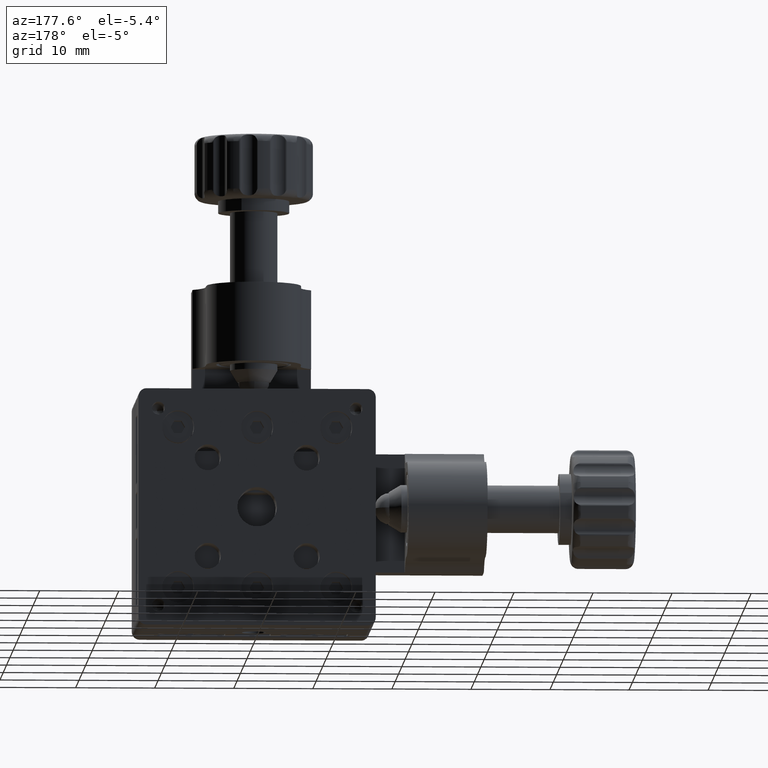
[diagram: clean part render]
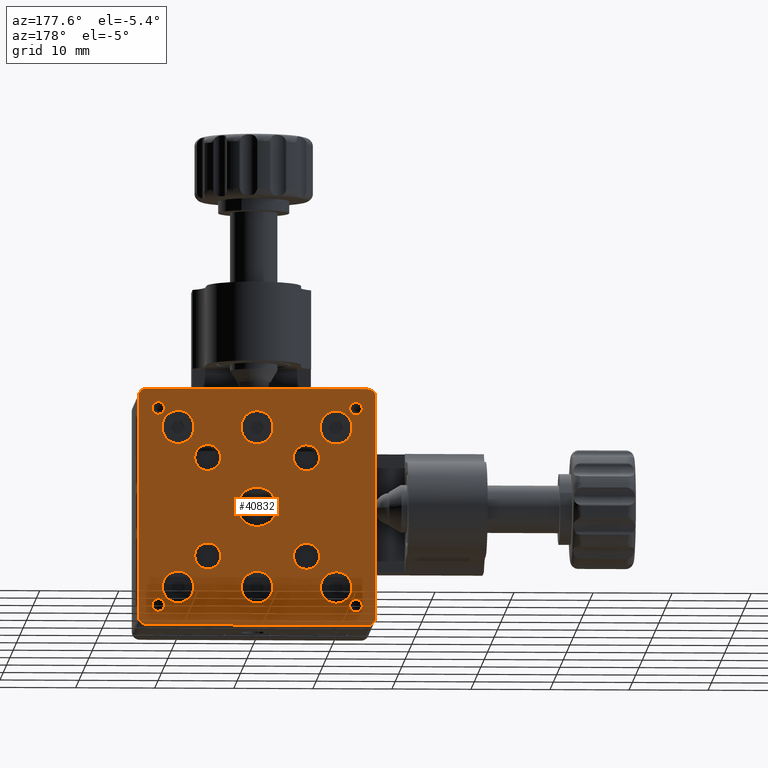
[diagram: same view with one face highlighted and labeled with its STEP entity id]
A machine part, auxiliary view. The second image highlights one B-rep face of the part: STEP entity #40832.
In plain terms, the highlighted planar face has unit normal (0, -1, 0).
Its self-contained STEP definition (entity closure, byte-faithful):
#114 = ORIENTED_EDGE ( 'NONE', *, *, #8071, .F. ) ;
#192 = DIRECTION ( 'NONE',  ( -2.997602166487921900E-015, 1.000000000000000000, -1.224606353822379200E-016 ) ) ;
#313 = ORIENTED_EDGE ( 'NONE', *, *, #47491, .F. ) ;
#328 = FACE_BOUND ( 'NONE', #18377, .T. ) ;
#331 = CARTESIAN_POINT ( 'NONE',  ( 14.00000000000000000, 20.50000000000004300, -14.00000000000000400 ) ) ;
#492 = DIRECTION ( 'NONE',  ( -2.997602166487921900E-015, 1.000000000000000000, -1.224606353822379200E-016 ) ) ;
#558 = CIRCLE ( 'NONE', #43018, 2.000000000000000000 ) ;
#562 = EDGE_CURVE ( 'NONE', #3336, #20582, #16929, .T. ) ;
#799 = CIRCLE ( 'NONE', #32449, 1.649999999999987500 ) ;
#1013 = EDGE_CURVE ( 'NONE', #4584, #19247, #11845, .T. ) ;
#1039 = CARTESIAN_POINT ( 'NONE',  ( 7.899999999999979900, 20.50000000000002500, 6.250000000000006200 ) ) ;
#1166 = DIRECTION ( 'NONE',  ( -2.997602166487921900E-015, 1.000000000000000000, -2.386109350007397900E-031 ) ) ;
#1644 = DIRECTION ( 'NONE',  ( 1.224606353822366900E-016, 0.0000000000000000000, -1.000000000000000000 ) ) ;
#1684 = DIRECTION ( 'NONE',  ( 0.0000000000000000000, 0.0000000000000000000, -1.000000000000000000 ) ) ;
#1900 = EDGE_CURVE ( 'NONE', #30932, #22012, #29693, .T. ) ;
#1932 = CARTESIAN_POINT ( 'NONE',  ( 14.99999999999999800, 20.50000000000005700, 15.00000000000001100 ) ) ;
#1982 = EDGE_CURVE ( 'NONE', #20019, #39586, #4286, .T. ) ;
#2001 = VERTEX_POINT ( 'NONE', #39128 ) ;
#2007 = VERTEX_POINT ( 'NONE', #11277 ) ;
#2032 = VERTEX_POINT ( 'NONE', #18935 ) ;
#2434 = CARTESIAN_POINT ( 'NONE',  ( -10.00000000000000200, 20.50000000000003200, 7.999999999999967100 ) ) ;
#2597 = CIRCLE ( 'NONE', #4235, 0.9999999999999991100 ) ;
#2702 = CARTESIAN_POINT ( 'NONE',  ( 13.99999999999999600, 20.50000000000005700, 14.00000000000001100 ) ) ;
#2743 = VERTEX_POINT ( 'NONE', #16041 ) ;
#2924 = VECTOR ( 'NONE', #32388, 1000.000000000000000 ) ;
#2951 = VERTEX_POINT ( 'NONE', #21485 ) ;
#3113 = DIRECTION ( 'NONE',  ( -2.997602166487921900E-015, 1.000000000000000000, -2.386109350007397900E-031 ) ) ;
#3182 = EDGE_LOOP ( 'NONE', ( #39464, #37356 ) ) ;
#3336 = VERTEX_POINT ( 'NONE', #12397 ) ;
#3345 = ORIENTED_EDGE ( 'NONE', *, *, #41640, .F. ) ;
#3468 = EDGE_LOOP ( 'NONE', ( #14972, #48994 ) ) ;
#3511 = DIRECTION ( 'NONE',  ( -2.997602166487921900E-015, 1.000000000000000000, -2.386109350007397900E-031 ) ) ;
#3728 = EDGE_LOOP ( 'NONE', ( #21303, #21374 ) ) ;
#4057 = DIRECTION ( 'NONE',  ( -1.224606353822366900E-016, 1.224606353822378200E-016, 1.000000000000000000 ) ) ;
#4101 = VERTEX_POINT ( 'NONE', #43845 ) ;
#4144 = CARTESIAN_POINT ( 'NONE',  ( 14.00000000000000000, 20.50000000000004300, -15.00000000000000400 ) ) ;
#4152 = AXIS2_PLACEMENT_3D ( 'NONE', #24954, #1166, #37701 ) ;
#4182 = DIRECTION ( 'NONE',  ( 1.224606353822366900E-016, 0.0000000000000000000, -1.000000000000000000 ) ) ;
#4235 = AXIS2_PLACEMENT_3D ( 'NONE', #2702, #30755, #50401 ) ;
#4286 = CIRCLE ( 'NONE', #19541, 1.649999999999988400 ) ;
#4340 = DIRECTION ( 'NONE',  ( -2.997602166487921900E-015, 1.000000000000000000, -1.224606353822379200E-016 ) ) ;
#4344 = DIRECTION ( 'NONE',  ( -2.997602166487921900E-015, 1.000000000000000000, -1.224606353822379200E-016 ) ) ;
#4394 = VECTOR ( 'NONE', #16592, 1000.000000000000000 ) ;
#4458 = VERTEX_POINT ( 'NONE', #26147 ) ;
#4563 = VERTEX_POINT ( 'NONE', #19581 ) ;
#4584 = VERTEX_POINT ( 'NONE', #35446 ) ;
#4667 = ORIENTED_EDGE ( 'NONE', *, *, #9670, .F. ) ;
#4671 = EDGE_LOOP ( 'NONE', ( #42762, #48431 ) ) ;
#4969 = CIRCLE ( 'NONE', #36708, 2.000000000000000000 ) ;
#5340 = FACE_BOUND ( 'NONE', #45796, .T. ) ;
#5416 = CARTESIAN_POINT ( 'NONE',  ( -12.00000000000000700, 20.50000000000005000, 9.999999999999913000 ) ) ;
#5554 = EDGE_CURVE ( 'NONE', #48292, #13274, #17712, .T. ) ;
#6122 = EDGE_CURVE ( 'NONE', #7581, #45290, #22583, .T. ) ;
#6163 = AXIS2_PLACEMENT_3D ( 'NONE', #29669, #49320, #33832 ) ;
#6476 = EDGE_LOOP ( 'NONE', ( #41348, #4667 ) ) ;
#6697 = CARTESIAN_POINT ( 'NONE',  ( -10.00000000000000500, 20.50000000000003200, -12.19999999999998900 ) ) ;
#6896 = ORIENTED_EDGE ( 'NONE', *, *, #18108, .F. ) ;
#6932 = AXIS2_PLACEMENT_3D ( 'NONE', #33303, #33954, #45945 ) ;
#7581 = VERTEX_POINT ( 'NONE', #12919 ) ;
#7743 = DIRECTION ( 'NONE',  ( -2.997602166487921900E-015, 1.000000000000000000, -1.224606353822379200E-016 ) ) ;
#7760 = EDGE_CURVE ( 'NONE', #33993, #44903, #39705, .T. ) ;
#7901 = CARTESIAN_POINT ( 'NONE',  ( 13.29999999999998800, 20.49999999999998900, -12.49999999999998900 ) ) ;
#8071 = EDGE_CURVE ( 'NONE', #15922, #46579, #4969, .T. ) ;
#8383 = CIRCLE ( 'NONE', #16347, 2.499999999999974200 ) ;
#8569 = ORIENTED_EDGE ( 'NONE', *, *, #17681, .F. ) ;
#8946 = VERTEX_POINT ( 'NONE', #17439 ) ;
#9075 = CARTESIAN_POINT ( 'NONE',  ( -14.99999999999999800, 20.50000000000010700, -15.00000000000000700 ) ) ;
#9202 = CARTESIAN_POINT ( 'NONE',  ( -15.00000000000000200, 20.50000000000011700, 15.00000000000000700 ) ) ;
#9365 = EDGE_CURVE ( 'NONE', #20582, #3336, #17311, .T. ) ;
#9665 = ORIENTED_EDGE ( 'NONE', *, *, #43163, .F. ) ;
#9670 = EDGE_CURVE ( 'NONE', #39586, #20019, #41368, .T. ) ;
#9725 = DIRECTION ( 'NONE',  ( -2.997602166487921900E-015, 1.000000000000000000, -2.386109350007397900E-031 ) ) ;
#9783 = DIRECTION ( 'NONE',  ( 0.0000000000000000000, 0.0000000000000000000, 1.000000000000000000 ) ) ;
#10124 = DIRECTION ( 'NONE',  ( -2.997602166487921900E-015, 1.000000000000000000, -1.224606353822379200E-016 ) ) ;
#10265 = DIRECTION ( 'NONE',  ( -2.997602166487921900E-015, 1.000000000000000000, -2.386109350007397900E-031 ) ) ;
#10314 = DIRECTION ( 'NONE',  ( 2.290864980352958700E-015, -1.224606353822427300E-016, -1.000000000000000000 ) ) ;
#10869 = CARTESIAN_POINT ( 'NONE',  ( -4.600000000000015600, 20.50000000000001800, -6.249999999999992900 ) ) ;
#11103 = DIRECTION ( 'NONE',  ( -1.000000000000000000, 2.102695122396144600E-015, 0.0000000000000000000 ) ) ;
#11277 = CARTESIAN_POINT ( 'NONE',  ( 2.000000000000000000, 20.50000000000008900, 10.19999999999999400 ) ) ;
#11317 = ORIENTED_EDGE ( 'NONE', *, *, #13414, .F. ) ;
#11479 = VERTEX_POINT ( 'NONE', #41059 ) ;
#11487 = DIRECTION ( 'NONE',  ( -1.000000000000000000, 2.102695122396145800E-015, 0.0000000000000000000 ) ) ;
#11569 = CARTESIAN_POINT ( 'NONE',  ( 10.00000000000000700, 20.50000000000000400, 10.20000000000000300 ) ) ;
#11786 = CARTESIAN_POINT ( 'NONE',  ( 1.999999999999998200, 20.50000000000001800, 9.999999999999968000 ) ) ;
#11796 = ORIENTED_EDGE ( 'NONE', *, *, #49135, .F. ) ;
#11845 = LINE ( 'NONE', #46229, #37864 ) ;
#11847 = CIRCLE ( 'NONE', #28515, 0.7999999999999899400 ) ;
#11917 = VECTOR ( 'NONE', #10314, 1000.000000000000000 ) ;
#11983 = AXIS2_PLACEMENT_3D ( 'NONE', #18299, #26394, #22774 ) ;
#12089 = DIRECTION ( 'NONE',  ( 0.0000000000000000000, 0.0000000000000000000, -1.000000000000000000 ) ) ;
#12110 = FACE_BOUND ( 'NONE', #47337, .T. ) ;
#12397 = CARTESIAN_POINT ( 'NONE',  ( 1.191483977452903700E-015, 20.50000000000001800, -12.19999999999998700 ) ) ;
#12504 = CARTESIAN_POINT ( 'NONE',  ( -12.50000000000000900, 20.50000000000005000, -12.49999999999999300 ) ) ;
#12512 = CIRCLE ( 'NONE', #43719, 2.000000000000000000 ) ;
#12609 = DIRECTION ( 'NONE',  ( 1.224606353822366900E-016, -1.224606353822378200E-016, -1.000000000000000000 ) ) ;
#12700 = CARTESIAN_POINT ( 'NONE',  ( -12.50000000000000500, 20.50000000000005000, 12.50000000000000900 ) ) ;
#12829 = CARTESIAN_POINT ( 'NONE',  ( 10.00000000000000700, 20.50000000000000400, 9.999999999999969800 ) ) ;
#12897 = AXIS2_PLACEMENT_3D ( 'NONE', #21736, #49467, #25710 ) ;
#12919 = CARTESIAN_POINT ( 'NONE',  ( 10.00000000000000900, 20.50000000000000400, -8.199999999999985100 ) ) ;
#12987 = ORIENTED_EDGE ( 'NONE', *, *, #6122, .F. ) ;
#13210 = CARTESIAN_POINT ( 'NONE',  ( -10.00000000000000900, 20.50000000000003200, -8.199999999999988600 ) ) ;
#13274 = VERTEX_POINT ( 'NONE', #15475 ) ;
#13280 = VERTEX_POINT ( 'NONE', #11786 ) ;
#13414 = EDGE_CURVE ( 'NONE', #26894, #15922, #16519, .T. ) ;
#13448 = DIRECTION ( 'NONE',  ( -2.997602166487921900E-015, 1.000000000000000000, -2.386109350007397900E-031 ) ) ;
#13652 = VECTOR ( 'NONE', #46802, 1000.000000000000000 ) ;
#13899 = DIRECTION ( 'NONE',  ( -2.997602166487921900E-015, 1.000000000000000000, -1.224606353822379200E-016 ) ) ;
#14062 = DIRECTION ( 'NONE',  ( -1.000000000000000000, 1.387778780781460100E-015, -1.224606353822385600E-016 ) ) ;
#14066 = EDGE_LOOP ( 'NONE', ( #3345, #22474 ) ) ;
#14140 = CARTESIAN_POINT ( 'NONE',  ( -11.70000000000001900, 20.50000000000005300, -12.49999999999999300 ) ) ;
#14156 = DIRECTION ( 'NONE',  ( -2.997602166487921900E-015, 1.000000000000000000, -1.224606353822379200E-016 ) ) ;
#14315 = AXIS2_PLACEMENT_3D ( 'NONE', #24259, #24927, #47973 ) ;
#14537 = CIRCLE ( 'NONE', #21846, 0.7999999999999899400 ) ;
#14596 = FACE_BOUND ( 'NONE', #14066, .T. ) ;
#14963 = ORIENTED_EDGE ( 'NONE', *, *, #46860, .T. ) ;
#14972 = ORIENTED_EDGE ( 'NONE', *, *, #29740, .F. ) ;
#15022 = EDGE_CURVE ( 'NONE', #2001, #4101, #42889, .T. ) ;
#15179 = CARTESIAN_POINT ( 'NONE',  ( -3.025357742103774500E-016, 20.50000000000001800, 1.408227788973710700E-014 ) ) ;
#15182 = DIRECTION ( 'NONE',  ( -2.997602166487921900E-015, 1.000000000000000000, -2.386109350007397900E-031 ) ) ;
#15278 = DIRECTION ( 'NONE',  ( -2.997602166487921900E-015, 1.000000000000000000, -2.386109350007397900E-031 ) ) ;
#15391 = AXIS2_PLACEMENT_3D ( 'NONE', #12829, #44174, #24456 ) ;
#15475 = CARTESIAN_POINT ( 'NONE',  ( -12.00000000000001200, 20.50000000000005000, 10.19999999999995300 ) ) ;
#15485 = CARTESIAN_POINT ( 'NONE',  ( 8.000000000000007100, 20.50000000000000400, 9.999999999999969800 ) ) ;
#15606 = ORIENTED_EDGE ( 'NONE', *, *, #23817, .T. ) ;
#15662 = CARTESIAN_POINT ( 'NONE',  ( -6.250000000000003600, 20.50000000000001400, -6.249999999999992900 ) ) ;
#15714 = DIRECTION ( 'NONE',  ( -1.000000000000000000, 2.102695122396144600E-015, 0.0000000000000000000 ) ) ;
#15922 = VERTEX_POINT ( 'NONE', #27475 ) ;
#15999 = CIRCLE ( 'NONE', #29210, 1.649999999999988400 ) ;
#16041 = CARTESIAN_POINT ( 'NONE',  ( 11.70000000000000600, 20.49999999999998600, 12.50000000000001200 ) ) ;
#16347 = AXIS2_PLACEMENT_3D ( 'NONE', #15179, #46152, #22442 ) ;
#16519 = CIRCLE ( 'NONE', #15391, 2.000000000000000000 ) ;
#16592 = DIRECTION ( 'NONE',  ( 1.000000000000000000, -1.887379141862765300E-015, 1.224606353822385100E-016 ) ) ;
#16691 = EDGE_CURVE ( 'NONE', #32008, #23409, #21177, .T. ) ;
#16713 = DIRECTION ( 'NONE',  ( 1.224606353822366900E-016, 0.0000000000000000000, -1.000000000000000000 ) ) ;
#16838 = DIRECTION ( 'NONE',  ( 0.0000000000000000000, 0.0000000000000000000, 1.000000000000000000 ) ) ;
#16929 = CIRCLE ( 'NONE', #39360, 2.000000000000000000 ) ;
#16938 = AXIS2_PLACEMENT_3D ( 'NONE', #42841, #15182, #15714 ) ;
#16970 = AXIS2_PLACEMENT_3D ( 'NONE', #23113, #43000, #47534 ) ;
#17004 = ORIENTED_EDGE ( 'NONE', *, *, #30564, .F. ) ;
#17077 = CIRCLE ( 'NONE', #40399, 0.7999999999999899400 ) ;
#17311 = CIRCLE ( 'NONE', #18265, 2.000000000000000000 ) ;
#17373 = CIRCLE ( 'NONE', #4152, 0.7999999999999899400 ) ;
#17439 = CARTESIAN_POINT ( 'NONE',  ( 3.214182392463624500E-015, 20.50000000000001800, 7.999999999999967100 ) ) ;
#17677 = AXIS2_PLACEMENT_3D ( 'NONE', #40988, #49005, #1684 ) ;
#17681 = EDGE_CURVE ( 'NONE', #13280, #8946, #558, .T. ) ;
#17712 = LINE ( 'NONE', #5416, #44306 ) ;
#17850 = ORIENTED_EDGE ( 'NONE', *, *, #44859, .F. ) ;
#17949 = CARTESIAN_POINT ( 'NONE',  ( 6.249999999999993800, 20.50000000000002100, -6.249999999999991100 ) ) ;
#18108 = EDGE_CURVE ( 'NONE', #35152, #27611, #42097, .T. ) ;
#18265 = AXIS2_PLACEMENT_3D ( 'NONE', #41301, #10124, #1644 ) ;
#18299 = CARTESIAN_POINT ( 'NONE',  ( 6.249999999999993800, 20.50000000000002100, -6.249999999999991100 ) ) ;
#18377 = EDGE_LOOP ( 'NONE', ( #50429, #30092 ) ) ;
#18445 = VECTOR ( 'NONE', #40719, 1000.000000000000000 ) ;
#18743 = CARTESIAN_POINT ( 'NONE',  ( 10.00000000000001200, 20.50000000000000400, -12.19999999999998500 ) ) ;
#18924 = VERTEX_POINT ( 'NONE', #46215 ) ;
#18935 = CARTESIAN_POINT ( 'NONE',  ( 14.99999999999999800, 20.50000000000005700, 14.00000000000001100 ) ) ;
#19161 = VERTEX_POINT ( 'NONE', #37341 ) ;
#19247 = VERTEX_POINT ( 'NONE', #50193 ) ;
#19541 = AXIS2_PLACEMENT_3D ( 'NONE', #15662, #3113, #11103 ) ;
#19581 = CARTESIAN_POINT ( 'NONE',  ( 15.00000000000000200, 20.50000000000004300, -14.00000000000000200 ) ) ;
#19631 = ORIENTED_EDGE ( 'NONE', *, *, #33173, .T. ) ;
#19929 = EDGE_CURVE ( 'NONE', #35015, #48684, #46306, .T. ) ;
#20019 = VERTEX_POINT ( 'NONE', #44730 ) ;
#20138 = CARTESIAN_POINT ( 'NONE',  ( 8.000000000000005300, 20.50000000000007500, 9.999999999999969800 ) ) ;
#20197 = FACE_BOUND ( 'NONE', #3728, .T. ) ;
#20290 = DIRECTION ( 'NONE',  ( -2.997602166487921900E-015, 1.000000000000000000, -2.386109350007397900E-031 ) ) ;
#20310 = CIRCLE ( 'NONE', #11983, 1.649999999999988400 ) ;
#20365 = CARTESIAN_POINT ( 'NONE',  ( -15.00000000000000200, 20.50000000000011700, 15.00000000000000700 ) ) ;
#20560 = ORIENTED_EDGE ( 'NONE', *, *, #37201, .F. ) ;
#20582 = VERTEX_POINT ( 'NONE', #45024 ) ;
#20817 = EDGE_LOOP ( 'NONE', ( #40929, #114, #11317, #36789, #6896 ) ) ;
#21031 = CARTESIAN_POINT ( 'NONE',  ( 11.70000000000000800, 20.49999999999998600, -12.49999999999998900 ) ) ;
#21163 = CARTESIAN_POINT ( 'NONE',  ( 4.600000000000002300, 20.50000000000002500, 6.250000000000006200 ) ) ;
#21177 = CIRCLE ( 'NONE', #45985, 2.000000000000000000 ) ;
#21303 = ORIENTED_EDGE ( 'NONE', *, *, #34258, .F. ) ;
#21374 = ORIENTED_EDGE ( 'NONE', *, *, #48984, .F. ) ;
#21485 = CARTESIAN_POINT ( 'NONE',  ( -8.000000000000010700, 20.50000000000003200, 10.20000000000000600 ) ) ;
#21607 = DIRECTION ( 'NONE',  ( 0.0000000000000000000, 0.0000000000000000000, -1.000000000000000000 ) ) ;
#21736 = CARTESIAN_POINT ( 'NONE',  ( -6.249999999999999100, 20.50000000000001400, 6.250000000000004400 ) ) ;
#21846 = AXIS2_PLACEMENT_3D ( 'NONE', #41849, #13448, #25732 ) ;
#22012 = VERTEX_POINT ( 'NONE', #7901 ) ;
#22392 = DIRECTION ( 'NONE',  ( -2.997602166487921900E-015, 1.000000000000000000, -2.386109350007397900E-031 ) ) ;
#22442 = DIRECTION ( 'NONE',  ( -1.000000000000000000, 1.387778780781460100E-015, -1.224606353822385600E-016 ) ) ;
#22450 = CIRCLE ( 'NONE', #6932, 0.7999999999999899400 ) ;
#22474 = ORIENTED_EDGE ( 'NONE', *, *, #15022, .F. ) ;
#22583 = CIRCLE ( 'NONE', #46289, 2.000000000000000000 ) ;
#22774 = DIRECTION ( 'NONE',  ( -1.000000000000000000, 2.102695122396144600E-015, 0.0000000000000000000 ) ) ;
#23113 = CARTESIAN_POINT ( 'NONE',  ( -10.00000000000001100, 20.50000000000003200, 10.20000000000000600 ) ) ;
#23409 = VERTEX_POINT ( 'NONE', #6697 ) ;
#23794 = CARTESIAN_POINT ( 'NONE',  ( -15.00000000000000200, 20.50000000000011700, 14.00000000000000400 ) ) ;
#23817 = EDGE_CURVE ( 'NONE', #44954, #35015, #36583, .T. ) ;
#23990 = FACE_BOUND ( 'NONE', #35717, .T. ) ;
#24063 = ORIENTED_EDGE ( 'NONE', *, *, #30042, .F. ) ;
#24086 = AXIS2_PLACEMENT_3D ( 'NONE', #30901, #26434, #38879 ) ;
#24259 = CARTESIAN_POINT ( 'NONE',  ( -13.99999999999999600, 20.50000000000010700, -14.00000000000000900 ) ) ;
#24383 = CIRCLE ( 'NONE', #14315, 1.000000000000000900 ) ;
#24386 = AXIS2_PLACEMENT_3D ( 'NONE', #45342, #48993, #37017 ) ;
#24395 = CARTESIAN_POINT ( 'NONE',  ( 12.00000000000000700, 20.49999999999998600, 9.999999999999969800 ) ) ;
#24456 = DIRECTION ( 'NONE',  ( 0.0000000000000000000, 0.0000000000000000000, -1.000000000000000000 ) ) ;
#24499 = ORIENTED_EDGE ( 'NONE', *, *, #37885, .F. ) ;
#24927 = DIRECTION ( 'NONE',  ( -2.997602166487921900E-015, 1.000000000000000000, -1.224606353822379200E-016 ) ) ;
#24954 = CARTESIAN_POINT ( 'NONE',  ( 12.49999999999999500, 20.49999999999998600, 12.50000000000001200 ) ) ;
#25195 = VERTEX_POINT ( 'NONE', #1039 ) ;
#25710 = DIRECTION ( 'NONE',  ( -1.000000000000000000, 2.102695122396145800E-015, 0.0000000000000000000 ) ) ;
#25732 = DIRECTION ( 'NONE',  ( -1.000000000000000000, 0.0000000000000000000, 0.0000000000000000000 ) ) ;
#25786 = ORIENTED_EDGE ( 'NONE', *, *, #43339, .F. ) ;
#26057 = DIRECTION ( 'NONE',  ( -1.000000000000000000, 0.0000000000000000000, 0.0000000000000000000 ) ) ;
#26080 = VERTEX_POINT ( 'NONE', #30894 ) ;
#26144 = DIRECTION ( 'NONE',  ( -2.290864980352958700E-015, 1.224606353822427300E-016, 1.000000000000000000 ) ) ;
#26147 = CARTESIAN_POINT ( 'NONE',  ( -11.70000000000001500, 20.50000000000005300, 12.50000000000000900 ) ) ;
#26394 = DIRECTION ( 'NONE',  ( -2.997602166487921900E-015, 1.000000000000000000, -2.386109350007397900E-031 ) ) ;
#26434 = DIRECTION ( 'NONE',  ( -2.997602166487921900E-015, 1.000000000000000000, -1.224606353822379200E-016 ) ) ;
#26671 = ORIENTED_EDGE ( 'NONE', *, *, #9365, .F. ) ;
#26790 = EDGE_CURVE ( 'NONE', #18924, #43826, #34179, .T. ) ;
#26894 = VERTEX_POINT ( 'NONE', #44485 ) ;
#26910 = ORIENTED_EDGE ( 'NONE', *, *, #39217, .F. ) ;
#26930 = ORIENTED_EDGE ( 'NONE', *, *, #1013, .F. ) ;
#27060 = AXIS2_PLACEMENT_3D ( 'NONE', #33446, #22392, #45433 ) ;
#27111 = EDGE_CURVE ( 'NONE', #19247, #2007, #12512, .T. ) ;
#27297 = AXIS2_PLACEMENT_3D ( 'NONE', #331, #492, #16838 ) ;
#27321 = ORIENTED_EDGE ( 'NONE', *, *, #19929, .T. ) ;
#27408 = EDGE_CURVE ( 'NONE', #31238, #49719, #42805, .T. ) ;
#27475 = CARTESIAN_POINT ( 'NONE',  ( 10.00000000000001600, 20.50000000000000400, 7.999999999999968900 ) ) ;
#27611 = VERTEX_POINT ( 'NONE', #45439 ) ;
#27646 = CARTESIAN_POINT ( 'NONE',  ( -13.29999999999999500, 20.50000000000005000, 12.50000000000000900 ) ) ;
#27825 = EDGE_CURVE ( 'NONE', #46579, #35152, #46496, .T. ) ;
#27911 = DIRECTION ( 'NONE',  ( 0.0000000000000000000, 0.0000000000000000000, -1.000000000000000000 ) ) ;
#28093 = CARTESIAN_POINT ( 'NONE',  ( 9.465627066884302000E-016, 20.50000000000001800, -10.19999999999998700 ) ) ;
#28120 = DIRECTION ( 'NONE',  ( -1.000000000000000000, 0.0000000000000000000, 0.0000000000000000000 ) ) ;
#28231 = EDGE_LOOP ( 'NONE', ( #42480, #24063, #46916, #26910, #11796 ) ) ;
#28515 = AXIS2_PLACEMENT_3D ( 'NONE', #37806, #37648, #26057 ) ;
#28869 = EDGE_CURVE ( 'NONE', #40693, #19161, #39571, .T. ) ;
#29184 = CARTESIAN_POINT ( 'NONE',  ( -14.00000000000000000, 20.50000000000011700, 14.00000000000000400 ) ) ;
#29210 = AXIS2_PLACEMENT_3D ( 'NONE', #35648, #20290, #43629 ) ;
#29669 = CARTESIAN_POINT ( 'NONE',  ( -1.527142128032736700E-015, 20.50000000000001800, 9.999999999999968000 ) ) ;
#29693 = CIRCLE ( 'NONE', #48059, 0.7999999999999899400 ) ;
#29740 = EDGE_CURVE ( 'NONE', #39270, #25195, #15999, .T. ) ;
#30042 = EDGE_CURVE ( 'NONE', #43826, #48292, #33269, .T. ) ;
#30092 = ORIENTED_EDGE ( 'NONE', *, *, #16691, .F. ) ;
#30210 = CARTESIAN_POINT ( 'NONE',  ( 1.999999999999998200, 20.50000000000001800, 9.999999999999968000 ) ) ;
#30456 = CARTESIAN_POINT ( 'NONE',  ( 10.00000000000001200, 20.50000000000000400, -10.19999999999998500 ) ) ;
#30564 = EDGE_CURVE ( 'NONE', #44903, #33993, #20310, .T. ) ;
#30635 = AXIS2_PLACEMENT_3D ( 'NONE', #29184, #33494, #9783 ) ;
#30651 = FACE_BOUND ( 'NONE', #6476, .T. ) ;
#30755 = DIRECTION ( 'NONE',  ( -2.997602166487921900E-015, 1.000000000000000000, -1.224606353822379200E-016 ) ) ;
#30817 = AXIS2_PLACEMENT_3D ( 'NONE', #20365, #39540, #4057 ) ;
#30839 = CARTESIAN_POINT ( 'NONE',  ( -12.00000000000000700, 20.50000000000010700, 9.999999999999913000 ) ) ;
#30894 = CARTESIAN_POINT ( 'NONE',  ( -7.899999999999987000, 20.50000000000001800, 6.250000000000004400 ) ) ;
#30901 = CARTESIAN_POINT ( 'NONE',  ( -10.00000000000000500, 20.50000000000003200, -10.19999999999998900 ) ) ;
#30932 = VERTEX_POINT ( 'NONE', #21031 ) ;
#30954 = CARTESIAN_POINT ( 'NONE',  ( 6.249999999999991100, 20.50000000000002100, 6.250000000000006200 ) ) ;
#30990 = CIRCLE ( 'NONE', #16970, 2.000000000000000000 ) ;
#31066 = ORIENTED_EDGE ( 'NONE', *, *, #27111, .F. ) ;
#31140 = CARTESIAN_POINT ( 'NONE',  ( -13.99999999999999600, 20.50000000000010700, -15.00000000000000700 ) ) ;
#31238 = VERTEX_POINT ( 'NONE', #31140 ) ;
#31724 = LINE ( 'NONE', #30210, #11917 ) ;
#32008 = VERTEX_POINT ( 'NONE', #13210 ) ;
#32388 = DIRECTION ( 'NONE',  ( 1.224606353822366900E-016, -1.224606353822378200E-016, -1.000000000000000000 ) ) ;
#32449 = AXIS2_PLACEMENT_3D ( 'NONE', #47008, #3511, #11487 ) ;
#32568 = CARTESIAN_POINT ( 'NONE',  ( -8.000000000000010700, 20.50000000000003200, 9.999999999999966200 ) ) ;
#32614 = CIRCLE ( 'NONE', #6163, 2.000000000000000000 ) ;
#32823 = ORIENTED_EDGE ( 'NONE', *, *, #7760, .F. ) ;
#32976 = ORIENTED_EDGE ( 'NONE', *, *, #43046, .T. ) ;
#33164 = FACE_BOUND ( 'NONE', #3182, .T. ) ;
#33173 = EDGE_CURVE ( 'NONE', #4563, #49719, #43440, .T. ) ;
#33269 = CIRCLE ( 'NONE', #17677, 1.999999999999998200 ) ;
#33303 = CARTESIAN_POINT ( 'NONE',  ( 12.49999999999999800, 20.49999999999998600, -12.49999999999998900 ) ) ;
#33446 = CARTESIAN_POINT ( 'NONE',  ( -12.50000000000000500, 20.50000000000005000, 12.50000000000000900 ) ) ;
#33494 = DIRECTION ( 'NONE',  ( -2.997602166487921900E-015, 1.000000000000000000, -1.224606353822379200E-016 ) ) ;
#33536 = EDGE_CURVE ( 'NONE', #23409, #32008, #47802, .T. ) ;
#33791 = LINE ( 'NONE', #39594, #40023 ) ;
#33832 = DIRECTION ( 'NONE',  ( 1.224606353822366900E-016, 0.0000000000000000000, -1.000000000000000000 ) ) ;
#33954 = DIRECTION ( 'NONE',  ( -2.997602166487921900E-015, 1.000000000000000000, -2.386109350007397900E-031 ) ) ;
#33993 = VERTEX_POINT ( 'NONE', #43174 ) ;
#34179 = CIRCLE ( 'NONE', #51056, 1.999999999999998200 ) ;
#34258 = EDGE_CURVE ( 'NONE', #2743, #36956, #17373, .T. ) ;
#34347 = DIRECTION ( 'NONE',  ( 1.224606353822366900E-016, 0.0000000000000000000, -1.000000000000000000 ) ) ;
#34433 = FACE_BOUND ( 'NONE', #4671, .T. ) ;
#34796 = AXIS2_PLACEMENT_3D ( 'NONE', #12504, #35859, #44199 ) ;
#34834 = EDGE_LOOP ( 'NONE', ( #9665, #12987 ) ) ;
#35015 = VERTEX_POINT ( 'NONE', #50795 ) ;
#35152 = VERTEX_POINT ( 'NONE', #43455 ) ;
#35172 = VERTEX_POINT ( 'NONE', #35992 ) ;
#35257 = AXIS2_PLACEMENT_3D ( 'NONE', #37751, #9725, #14062 ) ;
#35446 = CARTESIAN_POINT ( 'NONE',  ( -2.000000000000001300, 20.50000000000001800, 9.999999999999968000 ) ) ;
#35556 = CARTESIAN_POINT ( 'NONE',  ( 12.49999999999999800, 20.49999999999998600, -12.49999999999998900 ) ) ;
#35648 = CARTESIAN_POINT ( 'NONE',  ( 6.249999999999991100, 20.50000000000002100, 6.250000000000006200 ) ) ;
#35703 = FACE_BOUND ( 'NONE', #20817, .T. ) ;
#35717 = EDGE_LOOP ( 'NONE', ( #32823, #17004 ) ) ;
#35729 = AXIS2_PLACEMENT_3D ( 'NONE', #17949, #10265, #45623 ) ;
#35859 = DIRECTION ( 'NONE',  ( -2.997602166487921900E-015, 1.000000000000000000, -2.386109350007397900E-031 ) ) ;
#35884 = EDGE_CURVE ( 'NONE', #8946, #4584, #32614, .T. ) ;
#35992 = CARTESIAN_POINT ( 'NONE',  ( -14.99999999999999800, 20.50000000000010700, -14.00000000000000900 ) ) ;
#36583 = CIRCLE ( 'NONE', #30635, 0.9999999999999991100 ) ;
#36708 = AXIS2_PLACEMENT_3D ( 'NONE', #44805, #45314, #21607 ) ;
#36789 = ORIENTED_EDGE ( 'NONE', *, *, #36817, .F. ) ;
#36817 = EDGE_CURVE ( 'NONE', #27611, #26894, #41845, .T. ) ;
#36956 = VERTEX_POINT ( 'NONE', #37311 ) ;
#37017 = DIRECTION ( 'NONE',  ( 0.0000000000000000000, 0.0000000000000000000, -1.000000000000000000 ) ) ;
#37201 = EDGE_CURVE ( 'NONE', #38493, #4458, #17077, .T. ) ;
#37311 = CARTESIAN_POINT ( 'NONE',  ( 13.29999999999998500, 20.49999999999998900, 12.50000000000001200 ) ) ;
#37329 = EDGE_CURVE ( 'NONE', #19161, #40693, #14537, .T. ) ;
#37341 = CARTESIAN_POINT ( 'NONE',  ( -13.29999999999999900, 20.50000000000005000, -12.49999999999999300 ) ) ;
#37356 = ORIENTED_EDGE ( 'NONE', *, *, #28869, .F. ) ;
#37428 = ORIENTED_EDGE ( 'NONE', *, *, #27408, .F. ) ;
#37648 = DIRECTION ( 'NONE',  ( -2.997602166487921900E-015, 1.000000000000000000, -2.386109350007397900E-031 ) ) ;
#37701 = DIRECTION ( 'NONE',  ( -1.000000000000000000, 0.0000000000000000000, 0.0000000000000000000 ) ) ;
#37751 = CARTESIAN_POINT ( 'NONE',  ( -3.025357742103774500E-016, 20.50000000000001800, 1.408227788973710700E-014 ) ) ;
#37806 = CARTESIAN_POINT ( 'NONE',  ( 12.49999999999999500, 20.49999999999998600, 12.50000000000001200 ) ) ;
#37864 = VECTOR ( 'NONE', #26144, 1000.000000000000000 ) ;
#37885 = EDGE_CURVE ( 'NONE', #26080, #11479, #44214, .T. ) ;
#38249 = CARTESIAN_POINT ( 'NONE',  ( 13.99999999999999600, 20.50000000000005700, 15.00000000000001100 ) ) ;
#38291 = EDGE_LOOP ( 'NONE', ( #42364, #26671 ) ) ;
#38493 = VERTEX_POINT ( 'NONE', #27646 ) ;
#38789 = EDGE_CURVE ( 'NONE', #22012, #30932, #22450, .T. ) ;
#38879 = DIRECTION ( 'NONE',  ( 0.0000000000000000000, 0.0000000000000000000, -1.000000000000000000 ) ) ;
#39128 = CARTESIAN_POINT ( 'NONE',  ( 2.499999999999974200, 20.50000000000002500, 1.469459117797954000E-014 ) ) ;
#39217 = EDGE_CURVE ( 'NONE', #2951, #18924, #46950, .T. ) ;
#39270 = VERTEX_POINT ( 'NONE', #21163 ) ;
#39360 = AXIS2_PLACEMENT_3D ( 'NONE', #28093, #4344, #4182 ) ;
#39464 = ORIENTED_EDGE ( 'NONE', *, *, #37329, .F. ) ;
#39535 = DIRECTION ( 'NONE',  ( -2.997602166487921900E-015, 1.000000000000000000, -2.386109350007397900E-031 ) ) ;
#39540 = DIRECTION ( 'NONE',  ( 2.997602166487921900E-015, -1.000000000000000000, 1.224606353822381900E-016 ) ) ;
#39571 = CIRCLE ( 'NONE', #34796, 0.7999999999999899400 ) ;
#39586 = VERTEX_POINT ( 'NONE', #10869 ) ;
#39594 = CARTESIAN_POINT ( 'NONE',  ( -15.00000000000000200, 20.50000000000011700, 15.00000000000000700 ) ) ;
#39705 = CIRCLE ( 'NONE', #35729, 1.649999999999988400 ) ;
#40014 = CARTESIAN_POINT ( 'NONE',  ( -1.527142128032736700E-015, 20.50000000000001800, 9.999999999999968000 ) ) ;
#40023 = VECTOR ( 'NONE', #12609, 1000.000000000000000 ) ;
#40307 = EDGE_CURVE ( 'NONE', #44954, #35172, #33791, .T. ) ;
#40399 = AXIS2_PLACEMENT_3D ( 'NONE', #12700, #48385, #28120 ) ;
#40693 = VERTEX_POINT ( 'NONE', #14140 ) ;
#40719 = DIRECTION ( 'NONE',  ( 1.000000000000000000, -1.887379141862765300E-015, 1.224606353822385100E-016 ) ) ;
#40832 = ADVANCED_FACE ( 'NONE', ( #50564, #35703, #43708, #46200, #328, #41209, #20197, #34433, #33164, #12110, #23990, #45039, #5340, #30651, #14596, #44983 ), #48243, .F. ) ;
#40929 = ORIENTED_EDGE ( 'NONE', *, *, #27825, .F. ) ;
#40988 = CARTESIAN_POINT ( 'NONE',  ( -10.00000000000001100, 20.50000000000003200, 9.999999999999966200 ) ) ;
#41059 = CARTESIAN_POINT ( 'NONE',  ( -4.600000000000011200, 20.50000000000001800, 6.250000000000004400 ) ) ;
#41209 = FACE_BOUND ( 'NONE', #45015, .T. ) ;
#41258 = DIRECTION ( 'NONE',  ( -2.614331277502908700E-014, 1.224606353822868300E-016, 1.000000000000000000 ) ) ;
#41301 = CARTESIAN_POINT ( 'NONE',  ( 9.465627066884302000E-016, 20.50000000000001800, -10.19999999999998700 ) ) ;
#41348 = ORIENTED_EDGE ( 'NONE', *, *, #1982, .F. ) ;
#41368 = CIRCLE ( 'NONE', #16938, 1.649999999999988400 ) ;
#41483 = DIRECTION ( 'NONE',  ( 0.0000000000000000000, 0.0000000000000000000, -1.000000000000000000 ) ) ;
#41579 = DIRECTION ( 'NONE',  ( 0.0000000000000000000, 0.0000000000000000000, -1.000000000000000000 ) ) ;
#41640 = EDGE_CURVE ( 'NONE', #4101, #2001, #8383, .T. ) ;
#41654 = CARTESIAN_POINT ( 'NONE',  ( -10.00000000000000500, 20.50000000000003200, -10.19999999999998900 ) ) ;
#41703 = CIRCLE ( 'NONE', #44215, 1.649999999999988400 ) ;
#41845 = LINE ( 'NONE', #24395, #50559 ) ;
#41849 = CARTESIAN_POINT ( 'NONE',  ( -12.50000000000000900, 20.50000000000005000, -12.49999999999999300 ) ) ;
#42097 = CIRCLE ( 'NONE', #47366, 2.000000000000000000 ) ;
#42136 = CIRCLE ( 'NONE', #27060, 0.7999999999999899400 ) ;
#42364 = ORIENTED_EDGE ( 'NONE', *, *, #562, .F. ) ;
#42480 = ORIENTED_EDGE ( 'NONE', *, *, #5554, .F. ) ;
#42734 = EDGE_CURVE ( 'NONE', #25195, #39270, #41703, .T. ) ;
#42762 = ORIENTED_EDGE ( 'NONE', *, *, #1900, .F. ) ;
#42805 = LINE ( 'NONE', #9075, #4394 ) ;
#42841 = CARTESIAN_POINT ( 'NONE',  ( -6.250000000000003600, 20.50000000000001400, -6.249999999999992900 ) ) ;
#42889 = CIRCLE ( 'NONE', #35257, 2.499999999999974200 ) ;
#43000 = DIRECTION ( 'NONE',  ( -2.997602166487921900E-015, 1.000000000000000000, -1.224606353822379200E-016 ) ) ;
#43018 = AXIS2_PLACEMENT_3D ( 'NONE', #40014, #4340, #16713 ) ;
#43046 = EDGE_CURVE ( 'NONE', #31238, #35172, #24383, .T. ) ;
#43163 = EDGE_CURVE ( 'NONE', #45290, #7581, #50368, .T. ) ;
#43174 = CARTESIAN_POINT ( 'NONE',  ( 4.600000000000005000, 20.50000000000002500, -6.249999999999991100 ) ) ;
#43329 = CARTESIAN_POINT ( 'NONE',  ( 7.899999999999981700, 20.50000000000002500, -6.249999999999991100 ) ) ;
#43339 = EDGE_CURVE ( 'NONE', #2007, #13280, #31724, .T. ) ;
#43440 = CIRCLE ( 'NONE', #27297, 0.9999999999999991100 ) ;
#43455 = CARTESIAN_POINT ( 'NONE',  ( 8.000000000000007100, 20.50000000000000400, 10.20000000000000300 ) ) ;
#43525 = ORIENTED_EDGE ( 'NONE', *, *, #44803, .T. ) ;
#43531 = DIRECTION ( 'NONE',  ( -1.000000000000000000, 0.0000000000000000000, 0.0000000000000000000 ) ) ;
#43629 = DIRECTION ( 'NONE',  ( -1.000000000000000000, 2.102695122396144600E-015, 0.0000000000000000000 ) ) ;
#43708 = FACE_BOUND ( 'NONE', #34834, .T. ) ;
#43719 = AXIS2_PLACEMENT_3D ( 'NONE', #49849, #49678, #34347 ) ;
#43826 = VERTEX_POINT ( 'NONE', #2434 ) ;
#43845 = CARTESIAN_POINT ( 'NONE',  ( -2.499999999999974700, 20.50000000000002100, 1.377612630128151500E-014 ) ) ;
#44174 = DIRECTION ( 'NONE',  ( -2.997602166487921900E-015, 1.000000000000000000, -1.224606353822379200E-016 ) ) ;
#44199 = DIRECTION ( 'NONE',  ( -1.000000000000000000, 0.0000000000000000000, 0.0000000000000000000 ) ) ;
#44214 = CIRCLE ( 'NONE', #12897, 1.649999999999987500 ) ;
#44215 = AXIS2_PLACEMENT_3D ( 'NONE', #30954, #15278, #46412 ) ;
#44306 = VECTOR ( 'NONE', #41258, 1000.000000000000000 ) ;
#44485 = CARTESIAN_POINT ( 'NONE',  ( 12.00000000000000700, 20.49999999999998600, 9.999999999999969800 ) ) ;
#44730 = CARTESIAN_POINT ( 'NONE',  ( -7.899999999999992400, 20.50000000000001800, -6.249999999999992900 ) ) ;
#44803 = EDGE_CURVE ( 'NONE', #2032, #4563, #49601, .T. ) ;
#44805 = CARTESIAN_POINT ( 'NONE',  ( 10.00000000000000700, 20.50000000000000400, 9.999999999999969800 ) ) ;
#44859 = EDGE_CURVE ( 'NONE', #4458, #38493, #42136, .T. ) ;
#44903 = VERTEX_POINT ( 'NONE', #43329 ) ;
#44954 = VERTEX_POINT ( 'NONE', #23794 ) ;
#44979 = DIRECTION ( 'NONE',  ( 1.224606353822366900E-016, -1.224606353822382200E-016, -1.000000000000000000 ) ) ;
#44983 = FACE_OUTER_BOUND ( 'NONE', #50280, .T. ) ;
#45015 = EDGE_LOOP ( 'NONE', ( #25786, #31066, #26930, #47492, #8569 ) ) ;
#45024 = CARTESIAN_POINT ( 'NONE',  ( 4.953115325826371600E-015, 20.50000000000001800, -8.199999999999986900 ) ) ;
#45039 = FACE_BOUND ( 'NONE', #3468, .T. ) ;
#45290 = VERTEX_POINT ( 'NONE', #18743 ) ;
#45314 = DIRECTION ( 'NONE',  ( -2.997602166487921900E-015, 1.000000000000000000, -1.224606353822379200E-016 ) ) ;
#45342 = CARTESIAN_POINT ( 'NONE',  ( 10.00000000000001200, 20.50000000000000400, -10.19999999999998500 ) ) ;
#45433 = DIRECTION ( 'NONE',  ( -1.000000000000000000, 0.0000000000000000000, 0.0000000000000000000 ) ) ;
#45439 = CARTESIAN_POINT ( 'NONE',  ( 12.00000000000000700, 20.49999999999998600, 10.20000000000000300 ) ) ;
#45623 = DIRECTION ( 'NONE',  ( -1.000000000000000000, 2.102695122396144600E-015, 0.0000000000000000000 ) ) ;
#45768 = DIRECTION ( 'NONE',  ( 1.224606353822366900E-016, -1.224606353822378200E-016, -1.000000000000000000 ) ) ;
#45796 = EDGE_LOOP ( 'NONE', ( #24499, #313 ) ) ;
#45945 = DIRECTION ( 'NONE',  ( -1.000000000000000000, 0.0000000000000000000, 0.0000000000000000000 ) ) ;
#45985 = AXIS2_PLACEMENT_3D ( 'NONE', #41654, #14156, #41483 ) ;
#46152 = DIRECTION ( 'NONE',  ( -2.997602166487921900E-015, 1.000000000000000000, -2.386109350007397900E-031 ) ) ;
#46200 = FACE_BOUND ( 'NONE', #38291, .T. ) ;
#46215 = CARTESIAN_POINT ( 'NONE',  ( -8.000000000000010700, 20.50000000000003200, 9.999999999999966200 ) ) ;
#46229 = CARTESIAN_POINT ( 'NONE',  ( -2.000000000000001300, 20.50000000000001800, 9.999999999999968000 ) ) ;
#46289 = AXIS2_PLACEMENT_3D ( 'NONE', #30456, #13899, #41579 ) ;
#46306 = LINE ( 'NONE', #9202, #18445 ) ;
#46412 = DIRECTION ( 'NONE',  ( -1.000000000000000000, 2.102695122396144600E-015, 0.0000000000000000000 ) ) ;
#46496 = LINE ( 'NONE', #15485, #13652 ) ;
#46579 = VERTEX_POINT ( 'NONE', #20138 ) ;
#46802 = DIRECTION ( 'NONE',  ( -1.224606353822366900E-016, 1.224606353822382200E-016, 1.000000000000000000 ) ) ;
#46860 = EDGE_CURVE ( 'NONE', #48684, #2032, #2597, .T. ) ;
#46916 = ORIENTED_EDGE ( 'NONE', *, *, #26790, .F. ) ;
#46950 = LINE ( 'NONE', #32568, #2924 ) ;
#47008 = CARTESIAN_POINT ( 'NONE',  ( -6.249999999999999100, 20.50000000000001400, 6.250000000000004400 ) ) ;
#47092 = VECTOR ( 'NONE', #45768, 1000.000000000000000 ) ;
#47337 = EDGE_LOOP ( 'NONE', ( #20560, #17850 ) ) ;
#47366 = AXIS2_PLACEMENT_3D ( 'NONE', #11569, #7743, #12089 ) ;
#47491 = EDGE_CURVE ( 'NONE', #11479, #26080, #799, .T. ) ;
#47492 = ORIENTED_EDGE ( 'NONE', *, *, #35884, .F. ) ;
#47534 = DIRECTION ( 'NONE',  ( 0.0000000000000000000, 0.0000000000000000000, -1.000000000000000000 ) ) ;
#47674 = CARTESIAN_POINT ( 'NONE',  ( -10.00000000000001100, 20.50000000000003200, 9.999999999999966200 ) ) ;
#47802 = CIRCLE ( 'NONE', #24086, 2.000000000000000000 ) ;
#47973 = DIRECTION ( 'NONE',  ( 0.0000000000000000000, 0.0000000000000000000, 1.000000000000000000 ) ) ;
#48059 = AXIS2_PLACEMENT_3D ( 'NONE', #35556, #39535, #43531 ) ;
#48243 = PLANE ( 'NONE',  #30817 ) ;
#48292 = VERTEX_POINT ( 'NONE', #30839 ) ;
#48385 = DIRECTION ( 'NONE',  ( -2.997602166487921900E-015, 1.000000000000000000, -2.386109350007397900E-031 ) ) ;
#48431 = ORIENTED_EDGE ( 'NONE', *, *, #38789, .F. ) ;
#48648 = ORIENTED_EDGE ( 'NONE', *, *, #40307, .F. ) ;
#48684 = VERTEX_POINT ( 'NONE', #38249 ) ;
#48984 = EDGE_CURVE ( 'NONE', #36956, #2743, #11847, .T. ) ;
#48993 = DIRECTION ( 'NONE',  ( -2.997602166487921900E-015, 1.000000000000000000, -1.224606353822379200E-016 ) ) ;
#48994 = ORIENTED_EDGE ( 'NONE', *, *, #42734, .F. ) ;
#49005 = DIRECTION ( 'NONE',  ( -2.997602166487921900E-015, 1.000000000000000000, -1.224606353822379200E-016 ) ) ;
#49135 = EDGE_CURVE ( 'NONE', #13274, #2951, #30990, .T. ) ;
#49320 = DIRECTION ( 'NONE',  ( -2.997602166487921900E-015, 1.000000000000000000, -1.224606353822379200E-016 ) ) ;
#49467 = DIRECTION ( 'NONE',  ( -2.997602166487921900E-015, 1.000000000000000000, -2.386109350007397900E-031 ) ) ;
#49601 = LINE ( 'NONE', #1932, #47092 ) ;
#49678 = DIRECTION ( 'NONE',  ( -2.997602166487921900E-015, 1.000000000000000000, -1.224606353822379200E-016 ) ) ;
#49719 = VERTEX_POINT ( 'NONE', #4144 ) ;
#49849 = CARTESIAN_POINT ( 'NONE',  ( -1.551634255109184200E-015, 20.50000000000001800, 10.19999999999999400 ) ) ;
#50193 = CARTESIAN_POINT ( 'NONE',  ( -2.000000000000001800, 20.50000000000001800, 10.19999999999999400 ) ) ;
#50280 = EDGE_LOOP ( 'NONE', ( #48648, #15606, #27321, #14963, #43525, #19631, #37428, #32976 ) ) ;
#50368 = CIRCLE ( 'NONE', #24386, 2.000000000000000000 ) ;
#50401 = DIRECTION ( 'NONE',  ( 0.0000000000000000000, 0.0000000000000000000, 1.000000000000000000 ) ) ;
#50429 = ORIENTED_EDGE ( 'NONE', *, *, #33536, .F. ) ;
#50559 = VECTOR ( 'NONE', #44979, 1000.000000000000000 ) ;
#50564 = FACE_BOUND ( 'NONE', #28231, .T. ) ;
#50795 = CARTESIAN_POINT ( 'NONE',  ( -14.00000000000000000, 20.50000000000011700, 15.00000000000000700 ) ) ;
#51056 = AXIS2_PLACEMENT_3D ( 'NONE', #47674, #192, #27911 ) ;